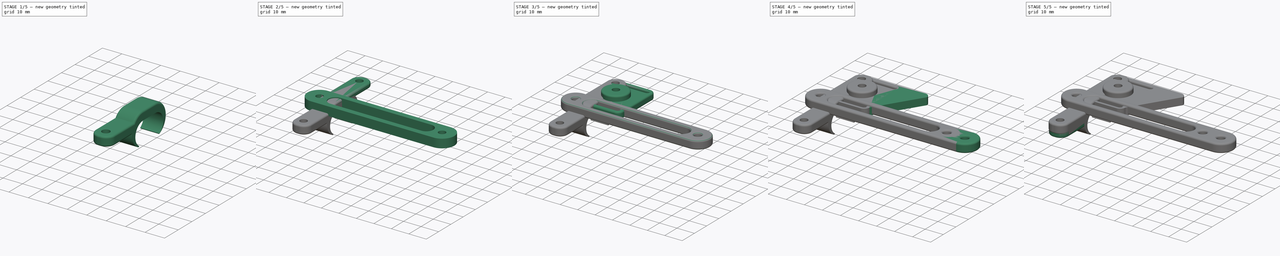
[diagram: build sequence overview — one tinted view per stage of 5, left to right]
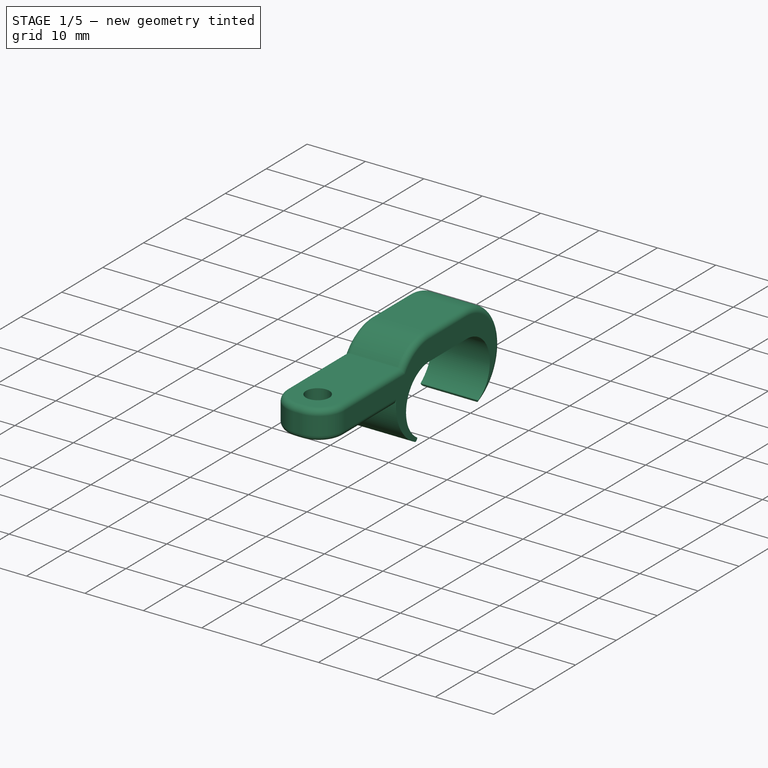
[diagram: stage 1 of 5 — iso view after this stage's code; geometry added in this stage tinted green]
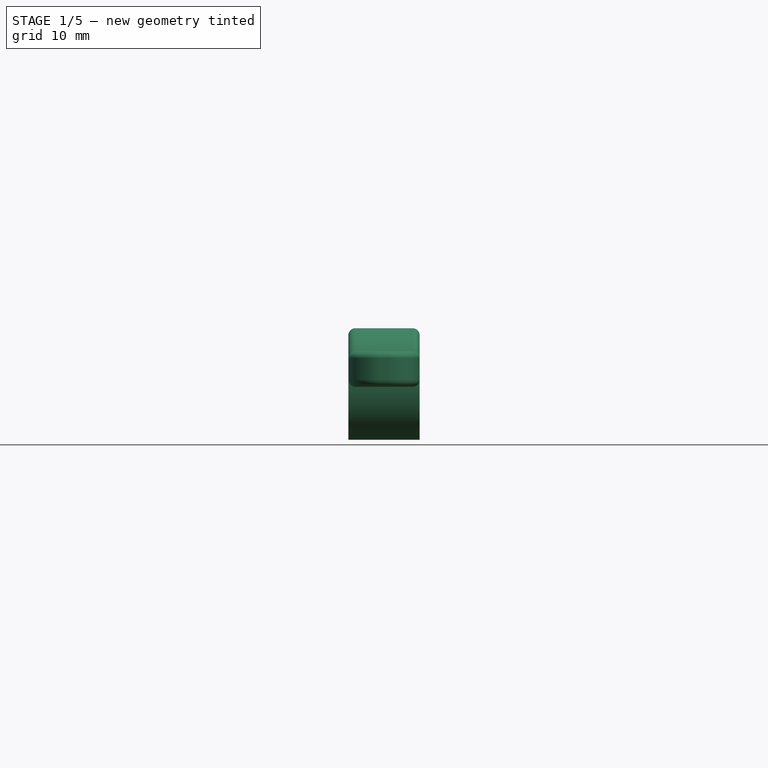
[diagram: stage 1 of 5 — front view after this stage's code; geometry added in this stage tinted green]
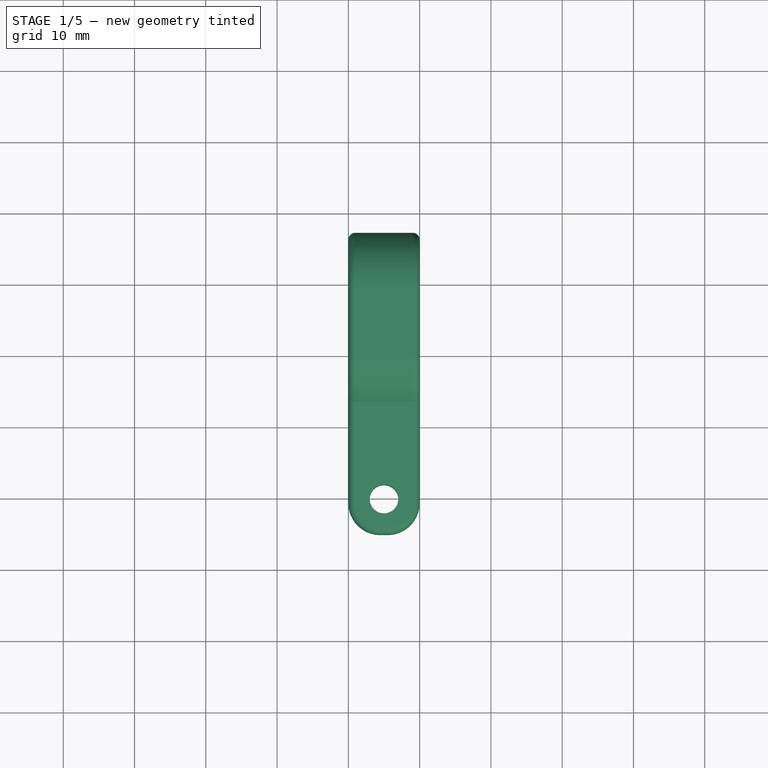
[diagram: stage 1 of 5 — top view after this stage's code; geometry added in this stage tinted green]
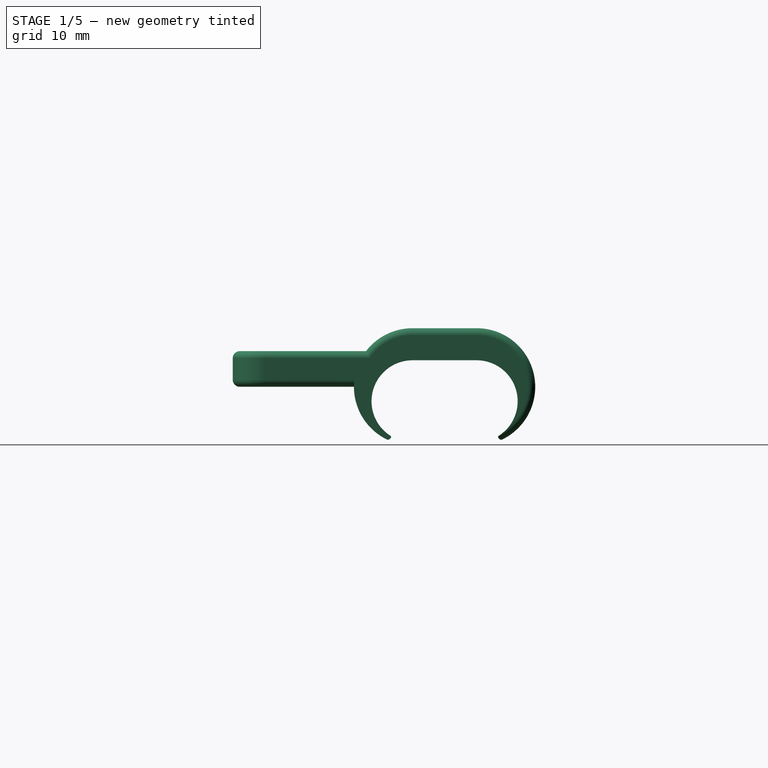
[diagram: stage 1 of 5 — right view after this stage's code; geometry added in this stage tinted green]
FCSTD DOCUMENT  (FreeCAD 0.18R4 (GitTag))
Label: v1.0_vufine_strap_mount
License: All rights reserved
LicenseURL: http://en.wikipedia.org/wiki/All_rights_reserved
objects: Sketcher::SketchObject×14, PartDesign::Pad×11, PartDesign::Fillet×11, PartDesign::Body×7, PartDesign::Pocket×3, App::DocumentObjectGroup×1
note: 60 computed .brp shape members not serialized (recipe doc carries the construction recipe); baked Part::Feature solids carry a one-line shape summary decoded from their .brp

FEATURE [PartDesign::Body] Body002  label="v1.0vufine_mount"
  Group = -> [Sketch003,Pad003,Sketch004,Pocket,Fillet003,Fillet004]
  Origin = -> Origin002
  Placement = pos=(77.5,-10.5,10.5) rot=(0,0,1;0rad)
  Tip = -> Fillet004
FEATURE [Sketcher::SketchObject] Sketch005  label="clip001"
  MapMode = 5
  Placement = pos=(0,0,0) rot=(0.57735,0.57735,0.57735;2.0944rad)
  Support = -> [YZ_Plane003]
  sketch-geometry (8):
    g0: ArcOfCircle CenterX=0 CenterY=-5.75 CenterZ=0 NormalX=0 NormalY=0 NormalZ=1 AngleXU=0 Radius=5.75 StartAngle=1.5708 EndAngle=4.1635
    g1: ArcOfCircle CenterX=9 CenterY=-5.75 CenterZ=0 NormalX=0 NormalY=0 NormalZ=1 AngleXU=0 Radius=5.75 StartAngle=5.26128 EndAngle=7.85398
    g2: LineSegment StartX=0 StartY=0 StartZ=0 EndX=9 EndY=0 EndZ=0
    g3: LineSegment StartX=0 StartY=4.5 StartZ=0 EndX=9.00002 EndY=4.5 EndZ=0
    g4: ArcOfCircle CenterX=9 CenterY=-3.71892 CenterZ=0 NormalX=0 NormalY=0 NormalZ=1 AngleXU=0 Radius=8.21892 StartAngle=5.15229 EndAngle=7.85398
    g5: ArcOfCircle CenterX=0 CenterY=-3.71892 CenterZ=0 NormalX=0 NormalY=0 NormalZ=1 AngleXU=0 Radius=8.21892 StartAngle=1.5708 EndAngle=4.27249
    g6: ArcOfCircle CenterX=-3.5 CenterY=-10.6554 CenterZ=0 NormalX=0 NormalY=0 NormalZ=1 AngleXU=0 Radius=0.5 StartAngle=4.71239 EndAngle=6.28319
    g7: ArcOfCircle CenterX=12.5 CenterY=-10.6554 CenterZ=0 NormalX=0 NormalY=0 NormalZ=1 AngleXU=0 Radius=0.5 StartAngle=3.14159 EndAngle=4.71239
  constraints (29):
    c: Coincident(g4,g7)
    c: Coincident(g1,g7)
    c: Coincident(g2,g1)
    c: Coincident(g0,g2)
    c: Coincident(g6,g0)
    c: Coincident(g6,g5)
    c: Coincident(g3,g5)
    c: Vertical(g1,g1)
    c: Vertical(g0,g0)
    c: Horizontal(g2)
    c: Diameter(g1) = 11.5
    c: Diameter(g0) = 11.5
    c: Vertical(g5,g0)
    c: Vertical(g4,g1)
    c: Horizontal(g3)
    c: Radius(g7) = 0.5
    c: Radius(g6) = 0.5
    c: Vertical(g0,g3)
    c: Horizontal(g4,g5)
    c: DistanceX(g5,g4) = 9
    c: Horizontal(g1,g0)
    c: Horizontal(g5,g4)
    c: DistanceX(g0,g0) = 3
    c: DistanceY(g0,g3) = 4.5
    c: Horizontal(g6,g0)
    c: Vertical(g5,g6)
    c: Vertical(g7,g4)
    c: Coincident(g0,g-1)
    c: Coincident(g4,g3)
FEATURE [PartDesign::Pad] Pad004
  Length = 10
  Length2 = 100
  Placement = pos=(0,0,0) rot=(0.57735,0.57735,0.57735;2.0944rad)
  Profile = -> Sketch005
  Type = 0
FEATURE [Sketcher::SketchObject] Sketch006
  ExternalGeometry = -> [Pad004]
  MapMode = 5
  Placement = pos=(0,0,0) rot=(0.57735,0.57735,-0.57735;4.18879rad)
  Support = -> [Pad004]
  sketch-geometry (4):
    g0: ArcOfCircle CenterX=-1.2e-15 CenterY=3.71892 CenterZ=0 NormalX=0 NormalY=0 NormalZ=1 AngleXU=0 Radius=8.21892 StartAngle=3.14159 EndAngle=3.79558
    g1: LineSegment StartX=-6.52308 StartY=-1.28108 StartZ=0 EndX=-25.2189 EndY=-1.28108 EndZ=0
    g2: LineSegment StartX=-8.21892 StartY=3.71892 StartZ=0 EndX=-25.2189 EndY=3.71892 EndZ=0
    g3: LineSegment StartX=-25.2189 StartY=3.71892 StartZ=0 EndX=-25.2189 EndY=-1.28108 EndZ=0
  constraints (12):
    c: PointOnObject(g0,g-3)
    c: Coincident(g0,g-3)
    c: Coincident(g2,g0)
    c: Coincident(g0,g1)
    c: Coincident(g3,g1)
    c: Coincident(g3,g2)
    c: Horizontal(g2)
    c: Horizontal(g1)
    c: Vertical(g3)
    c: DistanceX(g2,g0) = 17
    c: Horizontal(g0,g0)
    c: DistanceY(g1,g2) = 5
FEATURE [PartDesign::Pad] Pad005
  BaseFeature = -> Pad004
  Length = 10
  Length2 = 100
  Placement = pos=(0,0,0) rot=(0.57735,0.57735,0.57735;2.0944rad)
  Profile = -> Sketch006
  Reversed = true
  Type = 0
FEATURE [Sketcher::SketchObject] Sketch007
  ExternalGeometry = -> [Pad005]
  MapMode = 5
  Placement = pos=(-6e-16,3e-16,1.28108) rot=(0,0,-1;1.5708rad)
  Support = -> [Pad005]
  sketch-geometry (1):
    g0: Circle CenterX=20.2189 CenterY=5 CenterZ=0 NormalX=0 NormalY=0 NormalZ=1 AngleXU=0 Radius=2
  constraints (3):
    c: DistanceY(g-3,g0) = 5
    c: DistanceX(g0,g-3) = 5
    c: Radius(g0) = 2
FEATURE [PartDesign::Pocket] Pocket001
  BaseFeature = -> Pad005
  Length = 5
  Length2 = 100
  Placement = pos=(0,0,0) rot=(0.57735,0.57735,0.57735;2.0944rad)
  Profile = -> Sketch007
  Type = 0
FEATURE [PartDesign::Fillet] Fillet005  label="Fillet_round_rod_mount"
  Base = -> Pocket001 [Edge31,Edge35]
  BaseFeature = -> Pocket001
  Placement = pos=(0,0,0) rot=(0.57735,0.57735,0.57735;2.0944rad)
  Radius = 4.5
FEATURE [PartDesign::Fillet] Fillet006
  Base = -> Fillet005 [Edge8,Edge24,Edge44,Edge19]
  BaseFeature = -> Fillet005
  Placement = pos=(0,0,0) rot=(0.57735,0.57735,0.57735;2.0944rad)
  Radius = 1
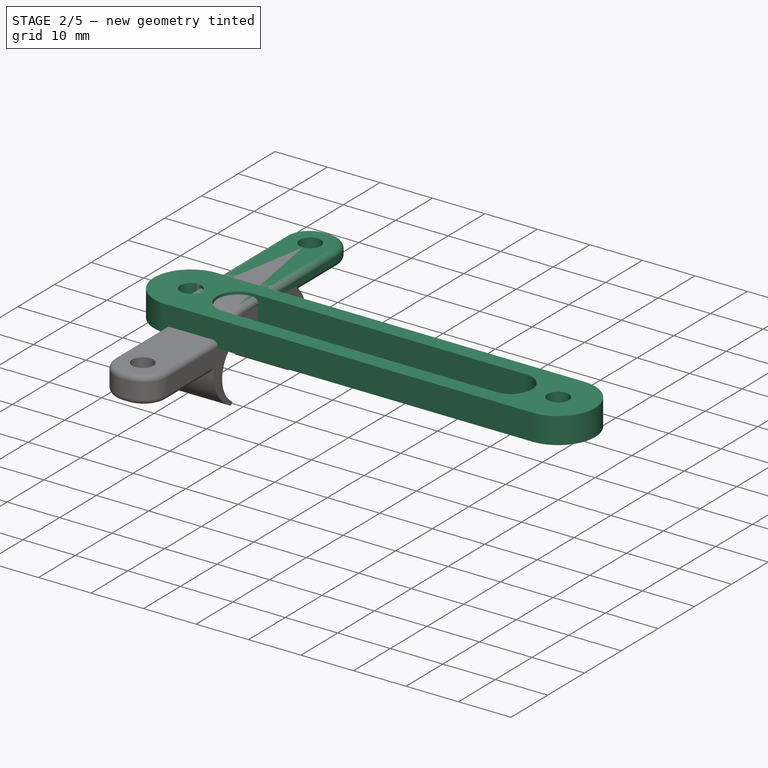
[diagram: stage 2 of 5 — iso view after this stage's code; geometry added in this stage tinted green]
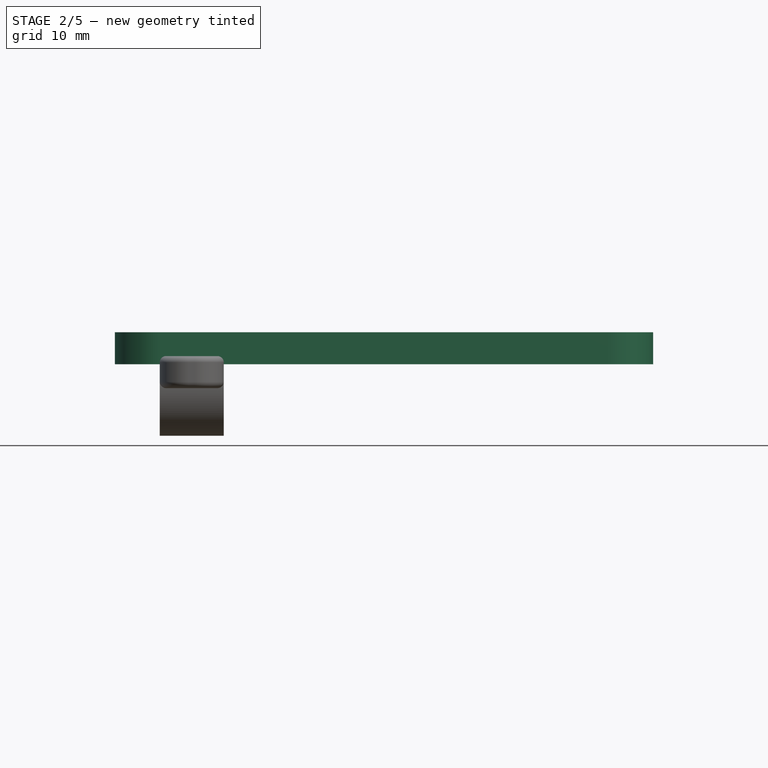
[diagram: stage 2 of 5 — front view after this stage's code; geometry added in this stage tinted green]
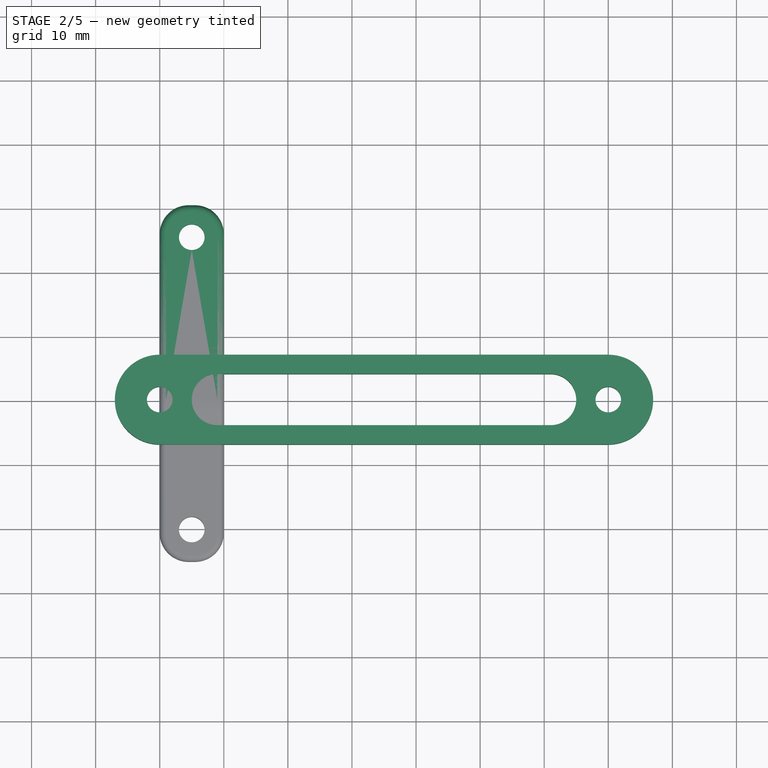
[diagram: stage 2 of 5 — top view after this stage's code; geometry added in this stage tinted green]
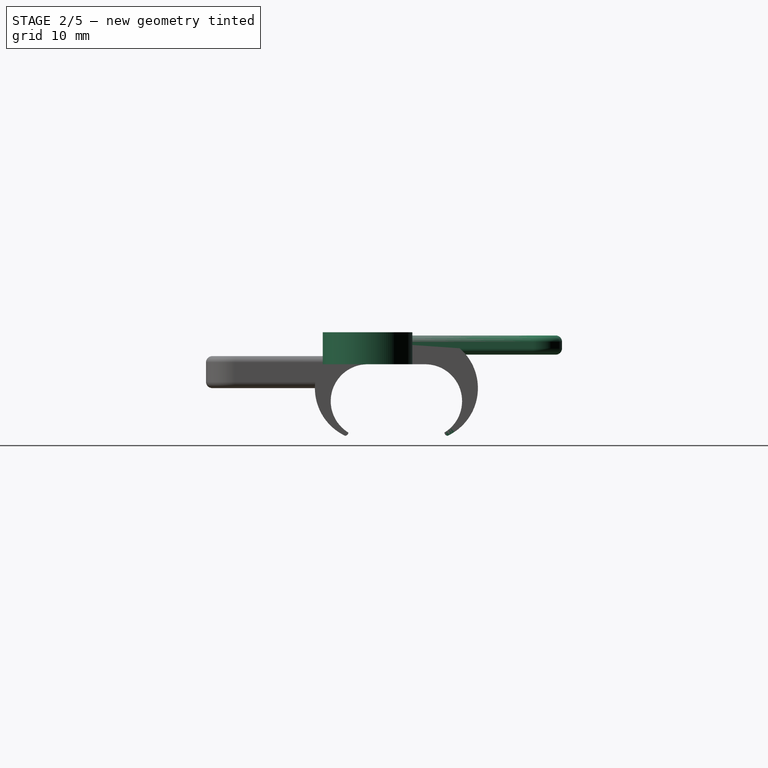
[diagram: stage 2 of 5 — right view after this stage's code; geometry added in this stage tinted green]
FEATURE [PartDesign::Body] Body  label="strap_mount"
  Group = -> [Sketch,Pad,Sketch001,Pad001,Fillet,Fillet001]
  Origin = -> Origin
  Tip = -> Fillet001
FEATURE [Sketcher::SketchObject] Sketch002  label="arm_base"
  MapMode = 5
  Support = -> [XY_Plane001]
  sketch-geometry (10):
    g0: Circle CenterX=0 CenterY=0 CenterZ=0 NormalX=0 NormalY=0 NormalZ=1 AngleXU=0 Radius=2
    g1: ArcOfCircle CenterX=0 CenterY=0 CenterZ=0 NormalX=0 NormalY=0 NormalZ=1 AngleXU=0 Radius=7 StartAngle=1.5708 EndAngle=4.71239
    g2: ArcOfCircle CenterX=70 CenterY=0 CenterZ=0 NormalX=0 NormalY=0 NormalZ=1 AngleXU=0 Radius=7 StartAngle=4.71239 EndAngle=7.85398
    g3: Circle CenterX=70 CenterY=0 CenterZ=0 NormalX=0 NormalY=0 NormalZ=1 AngleXU=0 Radius=2
    g4: LineSegment StartX=0 StartY=7 StartZ=0 EndX=70 EndY=7 EndZ=0
    g5: LineSegment StartX=70 StartY=-7 StartZ=0 EndX=0 EndY=-7 EndZ=0
    g6: ArcOfCircle CenterX=9 CenterY=0 CenterZ=0 NormalX=0 NormalY=0 NormalZ=1 AngleXU=0 Radius=4 StartAngle=1.5708 EndAngle=4.71239
    g7: ArcOfCircle CenterX=61 CenterY=-2e-16 CenterZ=0 NormalX=0 NormalY=0 NormalZ=1 AngleXU=0 Radius=4 StartAngle=4.71239 EndAngle=7.85398
    g8: LineSegment StartX=9 StartY=-4 StartZ=0 EndX=61 EndY=-4 EndZ=0
    g9: LineSegment StartX=9 StartY=4 StartZ=0 EndX=61 EndY=4 EndZ=0
  constraints (27):
    c: Coincident(g1,g0)
    c: Coincident(g0,g-1)
    c: Vertical(g1,g0)
    c: Vertical(g0,g1)
    c: Equal(g0,g3)
    c: Radius(g0) = 2
    c: Radius(g1) = 7
    c: Coincident(g2,g4)
    c: Coincident(g2,g5)
    c: Coincident(g3,g2)
    c: Vertical(g2,g2)
    c: Vertical(g2,g2)
    c: Coincident(g5,g1)
    c: Coincident(g4,g1)
    c: DistanceX(g0,g2) = 70
    c: Tangent(g6,g9) = 1.5708
    c: Tangent(g6,g8) = -1.5708
    c: Tangent(g8,g7) = -1.5708
    c: Tangent(g9,g7) = 1.5708
    c: Horizontal(g8)
    c: Equal(g6,g7)
    c: Horizontal(g6,g0)
    c: DistanceY(g1,g6) = 3
    c: DistanceX(g7,g2) = 9
    c: DistanceX(g0,g6) = 9
    c: Horizontal(g2,g0)
    c: Parallel(g5,g8)
FEATURE [PartDesign::Pad] Pad002  label="Pad_arm_base"
  Length = 5
  Length2 = 100
  Profile = -> Sketch002
  Type = 0
FEATURE [PartDesign::Body] Body001  label="arm"
  Group = -> [Sketch002,Pad002,Fillet002]
  Origin = -> Origin001
  Placement = pos=(12.5,15,7) rot=(0,0,1;0rad)
  Tip = -> Fillet002
FEATURE [Sketcher::SketchObject] Sketch003  label="clip"
  MapMode = 5
  Placement = pos=(0,0,0) rot=(0.57735,0.57735,0.57735;2.0944rad)
  Support = -> [YZ_Plane002]
  sketch-geometry (10):
    g0: ArcOfCircle CenterX=5e-16 CenterY=-5.75 CenterZ=0 NormalX=0 NormalY=0 NormalZ=1 AngleXU=0 Radius=5.75 StartAngle=1.5708 EndAngle=4.1635
    g1: ArcOfCircle CenterX=9 CenterY=-5.75 CenterZ=0 NormalX=0 NormalY=0 NormalZ=1 AngleXU=0 Radius=5.75 StartAngle=5.26128 EndAngle=7.85398
    g2: LineSegment StartX=5e-16 StartY=0 StartZ=0 EndX=9 EndY=0 EndZ=0
    g3: LineSegment StartX=5e-16 StartY=4.5 StartZ=0 EndX=30.3493 EndY=4.5 EndZ=0
    g4: ArcOfCircle CenterX=9 CenterY=-3.71892 CenterZ=0 NormalX=0 NormalY=0 NormalZ=1 AngleXU=0 Radius=8.21892 StartAngle=5.15229 EndAngle=6.97118
    g5: ArcOfCircle CenterX=5e-16 CenterY=-3.71892 CenterZ=0 NormalX=0 NormalY=0 NormalZ=1 AngleXU=0 Radius=8.21892 StartAngle=1.5708 EndAngle=4.27249
    g6: ArcOfCircle CenterX=-3.5 CenterY=-10.6554 CenterZ=0 NormalX=0 NormalY=0 NormalZ=1 AngleXU=0 Radius=0.5 StartAngle=4.71239 EndAngle=6.28319
    g7: ArcOfCircle CenterX=12.5 CenterY=-10.6554 CenterZ=0 NormalX=0 NormalY=0 NormalZ=1 AngleXU=0 Radius=0.5 StartAngle=3.14159 EndAngle=4.71239
    g8: LineSegment StartX=15.3493 StartY=1.5 StartZ=0 EndX=30.3493 EndY=1.5 EndZ=0
    g9: LineSegment StartX=30.3493 StartY=4.5 StartZ=0 EndX=30.3493 EndY=1.5 EndZ=0
  constraints (35):
    c: Coincident(g4,g7)
    c: Coincident(g1,g7)
    c: Coincident(g2,g1)
    c: Coincident(g0,g2)
    c: Coincident(g6,g0)
    c: Coincident(g6,g5)
    c: Coincident(g3,g5)
    c: Coincident(g9,g3)
    c: Coincident(g9,g8)
    c: Coincident(g8,g4)
    c: Vertical(g1,g1)
    c: Vertical(g0,g0)
    c: Horizontal(g2)
    c: Diameter(g1) = 11.5
    c: Diameter(g0) = 11.5
    c: Vertical(g5,g0)
    c: Vertical(g4,g1)
    c: Horizontal(g3)
    c: Horizontal(g8)
    c: Vertical(g9)
    c: Radius(g7) = 0.5
    c: Radius(g6) = 0.5
    c: Vertical(g0,g3)
    c: Horizontal(g4,g5)
    c: DistanceX(g5,g4) = 9
    c: Horizontal(g1,g0)
    c: Horizontal(g5,g4)
    c: DistanceY(g8,g3) = 3
    c: DistanceX(g0,g0) = 3
    c: DistanceY(g0,g3) = 4.5
    c: Horizontal(g6,g0)
    c: Vertical(g5,g6)
    c: Vertical(g7,g4)
    c: DistanceX(g4,g8) = 15
    c: Coincident(g0,g-1)
FEATURE [PartDesign::Pad] Pad003  label="clip_body"
  Length = 10
  Length2 = 100
  Placement = pos=(0,0,0) rot=(0.57735,0.57735,0.57735;2.0944rad)
  Profile = -> Sketch003
  Type = 0
FEATURE [Sketcher::SketchObject] Sketch004  label="screwhole"
  ExternalGeometry = -> [Pad003]
  MapMode = 5
  Placement = pos=(-4e-16,7e-16,1.5) rot=(0.707107,0.707107,0;3.14159rad)
  Support = -> [Pad003]
  sketch-geometry (1):
    g0: Circle CenterX=25.3493 CenterY=5 CenterZ=0 NormalX=0 NormalY=0 NormalZ=1 AngleXU=0 Radius=2
  constraints (3):
    c: DistanceX(g0,g-3) = 5
    c: DistanceY(g-3,g0) = 5
    c: Radius(g0) = 2
FEATURE [PartDesign::Pocket] Pocket  label="screwhole_added"
  BaseFeature = -> Pad003
  Length = 5
  Length2 = 100
  Placement = pos=(0,0,0) rot=(0.57735,0.57735,0.57735;2.0944rad)
  Profile = -> Sketch004
  Type = 0
FEATURE [PartDesign::Fillet] Fillet003  label="Fillet_top"
  Base = -> Pocket [Edge15,Edge22]
  BaseFeature = -> Pocket
  Placement = pos=(0,0,0) rot=(0.57735,0.57735,0.57735;2.0944rad)
  Radius = 4.5
FEATURE [PartDesign::Fillet] Fillet004  label="Fillet_clip_edges"
  Base = -> Fillet003 [Edge14,Edge23]
  BaseFeature = -> Fillet003
  Placement = pos=(0,0,0) rot=(0.57735,0.57735,0.57735;2.0944rad)
  Radius = 1
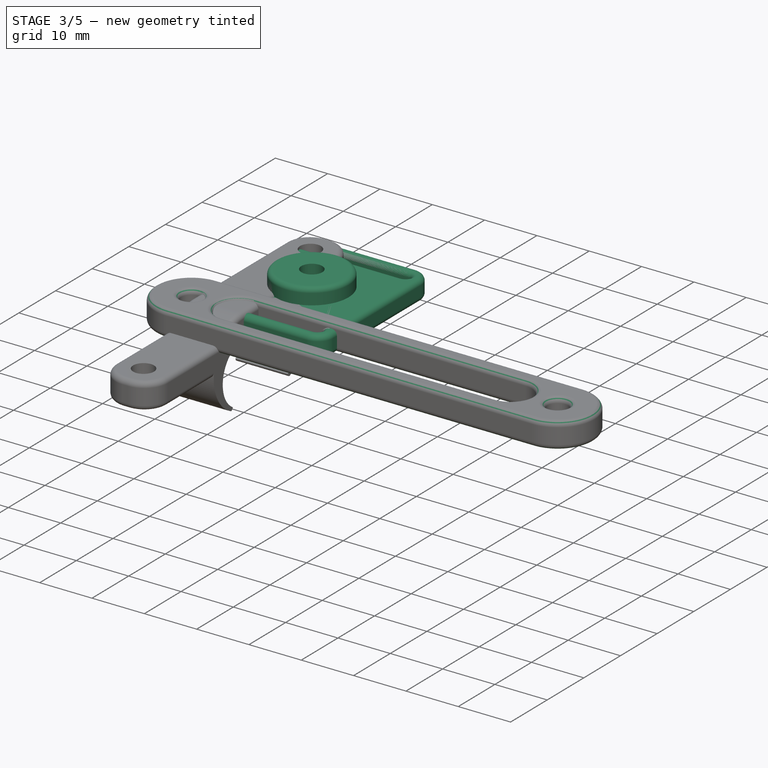
[diagram: stage 3 of 5 — iso view after this stage's code; geometry added in this stage tinted green]
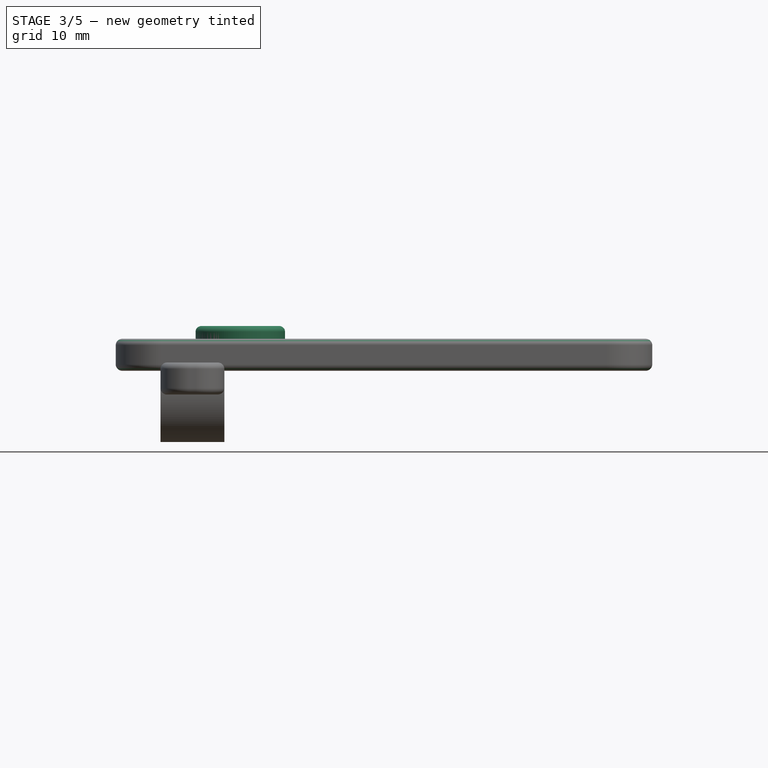
[diagram: stage 3 of 5 — front view after this stage's code; geometry added in this stage tinted green]
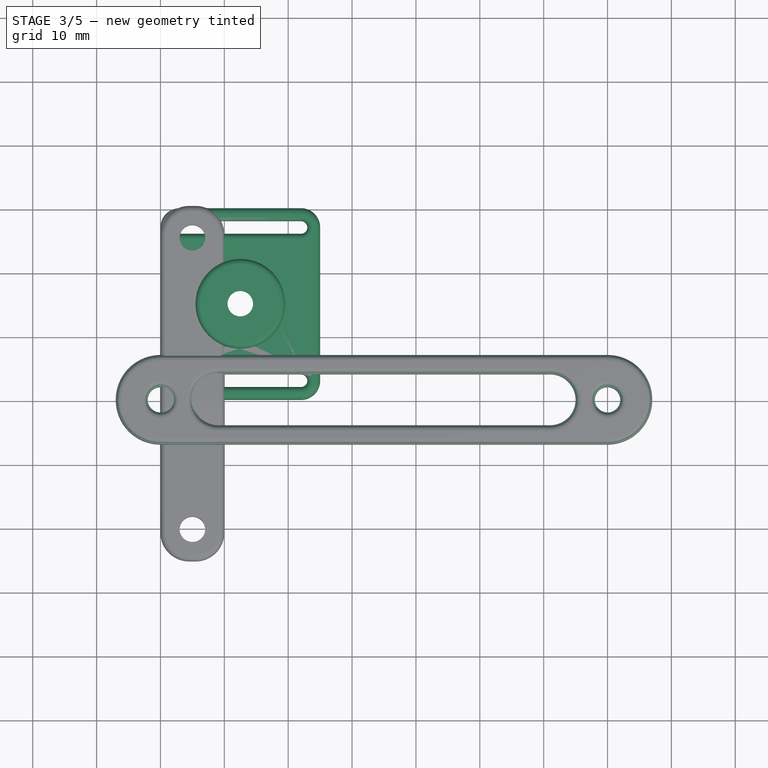
[diagram: stage 3 of 5 — top view after this stage's code; geometry added in this stage tinted green]
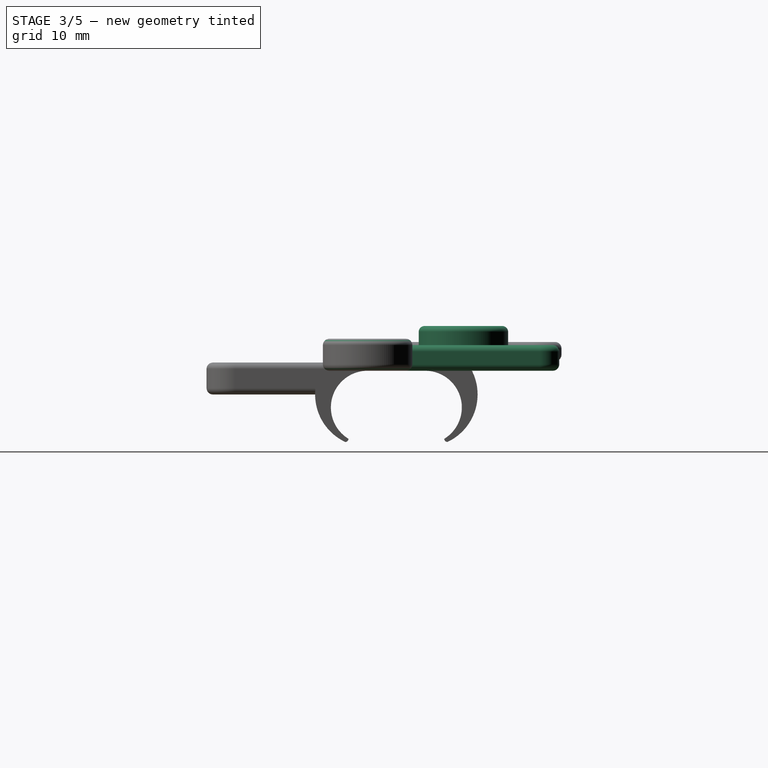
[diagram: stage 3 of 5 — right view after this stage's code; geometry added in this stage tinted green]
FEATURE [Sketcher::SketchObject] Sketch  label="strap_attachment"
  MapMode = 5
  Support = -> [XY_Plane]
  sketch-geometry (17):
    g0: LineSegment StartX=-4e-16 StartY=3 StartZ=0 EndX=-4e-16 EndY=27 EndZ=0
    g1: ArcOfCircle CenterX=3 CenterY=27 CenterZ=0 NormalX=0 NormalY=0 NormalZ=1 AngleXU=0 Radius=3 StartAngle=1.5708 EndAngle=3.14159
    g2: ArcOfCircle CenterX=22 CenterY=27 CenterZ=0 NormalX=0 NormalY=0 NormalZ=1 AngleXU=0 Radius=3 StartAngle=0 EndAngle=1.5708
    g3: ArcOfCircle CenterX=22 CenterY=3 CenterZ=0 NormalX=0 NormalY=0 NormalZ=1 AngleXU=0 Radius=3 StartAngle=4.71239 EndAngle=6.28319
    g4: ArcOfCircle CenterX=3 CenterY=3 CenterZ=0 NormalX=0 NormalY=0 NormalZ=1 AngleXU=0 Radius=3 StartAngle=3.14159 EndAngle=4.71239
    g5: LineSegment StartX=3 StartY=30 StartZ=0 EndX=22 EndY=30 EndZ=0
    g6: LineSegment StartX=25 StartY=27 StartZ=0 EndX=25 EndY=3 EndZ=0
    g7: LineSegment StartX=22 StartY=0 StartZ=0 EndX=3 EndY=0 EndZ=0
    g8: ArcOfCircle CenterX=3 CenterY=3 CenterZ=0 NormalX=0 NormalY=0 NormalZ=1 AngleXU=0 Radius=1 StartAngle=1.5708 EndAngle=4.71239
    g9: ArcOfCircle CenterX=22 CenterY=3 CenterZ=0 NormalX=0 NormalY=0 NormalZ=1 AngleXU=0 Radius=1 StartAngle=4.71239 EndAngle=7.85398
    g10: LineSegment StartX=3 StartY=2 StartZ=0 EndX=22 EndY=2 EndZ=0
    g11: LineSegment StartX=3 StartY=4 StartZ=0 EndX=22 EndY=4 EndZ=0
    g12: ArcOfCircle CenterX=3 CenterY=27 CenterZ=0 NormalX=0 NormalY=0 NormalZ=1 AngleXU=0 Radius=1 StartAngle=1.5708 EndAngle=4.71239
    g13: ArcOfCircle CenterX=22 CenterY=27 CenterZ=0 NormalX=0 NormalY=0 NormalZ=1 AngleXU=0 Radius=1 StartAngle=4.71239 EndAngle=7.85398
    g14: LineSegment StartX=3 StartY=26 StartZ=0 EndX=22 EndY=26 EndZ=0
    g15: LineSegment StartX=3 StartY=28 StartZ=0 EndX=22 EndY=28 EndZ=0
    g16: Circle CenterX=12.5 CenterY=15 CenterZ=0 NormalX=0 NormalY=0 NormalZ=1 AngleXU=0 Radius=4.5
  constraints (55):
    c: Coincident(g4,g7)
    c: Coincident(g0,g4)
    c: Coincident(g0,g1)
    c: Coincident(g5,g1)
    c: Coincident(g5,g2)
    c: Coincident(g2,g6)
    c: Coincident(g6,g3)
    c: Coincident(g3,g7)
    c: Coincident(g3,g9)
    c: Coincident(g8,g4)
    c: Coincident(g1,g12)
    c: Coincident(g2,g13)
    c: Coincident(g11,g9)
    c: Coincident(g9,g10)
    c: Coincident(g10,g8)
    c: Coincident(g8,g11)
    c: Coincident(g13,g15)
    c: Coincident(g13,g14)
    c: Coincident(g14,g12)
    c: Coincident(g12,g15)
    c: Vertical(g3,g9)
    c: Vertical(g9,g3)
    c: Vertical(g3,g9)
    c: Vertical(g9,g13)
    c: Vertical(g13,g2)
    c: Vertical(g2,g13)
    c: Vertical(g13,g2)
    c: Vertical(g4,g8)
    c: Vertical(g8,g4)
    c: Vertical(g4,g8)
    c: Vertical(g8,g12)
    c: Vertical(g12,g1)
    c: Vertical(g12,g1)
    c: Horizontal(g0,g4)
    c: Horizontal(g4,g3)
    c: Horizontal(g3,g3)
    c: Horizontal(g0,g1)
    c: Horizontal(g1,g2)
    c: Horizontal(g2,g2)
    c: Horizontal(g15)
    c: Horizontal(g5)
    c: Horizontal(g11)
    c: Horizontal(g7)
    c: Vertical(g0)
    c: Horizontal(g4,g-1)
    c: Vertical(g-1,g0)
    c: Equal(g9,g13)
    c: Equal(g11,g15)
    c: Radius(g13) = 1
    c: Distance(g15) = 19
    c: Distance(g3,g2) = 30
    c: Distance(g1,g1) = 3
    c: DistanceY(g4,g16) = 15
    c: DistanceX(g0,g16) = 12.5
    c: Radius(g16) = 4.5
FEATURE [PartDesign::Pad] Pad
  Length = 4
  Length2 = 100
  Profile = -> Sketch
  Type = 0
FEATURE [Sketcher::SketchObject] Sketch001  label="screw_cover_and_pivot"
  ExternalGeometry = -> [Pad]
  MapMode = 5
  Placement = pos=(0,0,4) rot=(0,0,1;0rad)
  Support = -> [Pad]
  sketch-geometry (2):
    g0: Circle CenterX=12.5 CenterY=15 CenterZ=0 NormalX=0 NormalY=0 NormalZ=1 AngleXU=0 Radius=7
    g1: Circle CenterX=12.5 CenterY=15 CenterZ=0 NormalX=0 NormalY=0 NormalZ=1 AngleXU=0 Radius=2
  constraints (4):
    c: Radius(g1) = 2
    c: Radius(g0) = 7
    c: Coincident(g1,g0)
    c: Coincident(g0,g-3)
FEATURE [PartDesign::Pad] Pad001
  BaseFeature = -> Pad
  Length = 3
  Length2 = 100
  Profile = -> Sketch001
  Type = 0
FEATURE [PartDesign::Fillet] Fillet  label="Fillet_strapholes"
  Base = -> Pad001 [Edge19,Edge33,Edge38,Edge22,Edge54,Edge55]
  BaseFeature = -> Pad001
  Radius = 0.9
FEATURE [PartDesign::Fillet] Fillet001  label="Fillet_everything_else"
  Base = -> Fillet [Edge40,Edge7,Edge13]
  BaseFeature = -> Fillet
  Radius = 1
FEATURE [PartDesign::Fillet] Fillet002  label="Fillet_arm_base_edges"
  Base = -> Pad002 [Edge16,Edge10,Edge30,Edge27,Edge11,Edge21]
  BaseFeature = -> Pad002
  Radius = 1
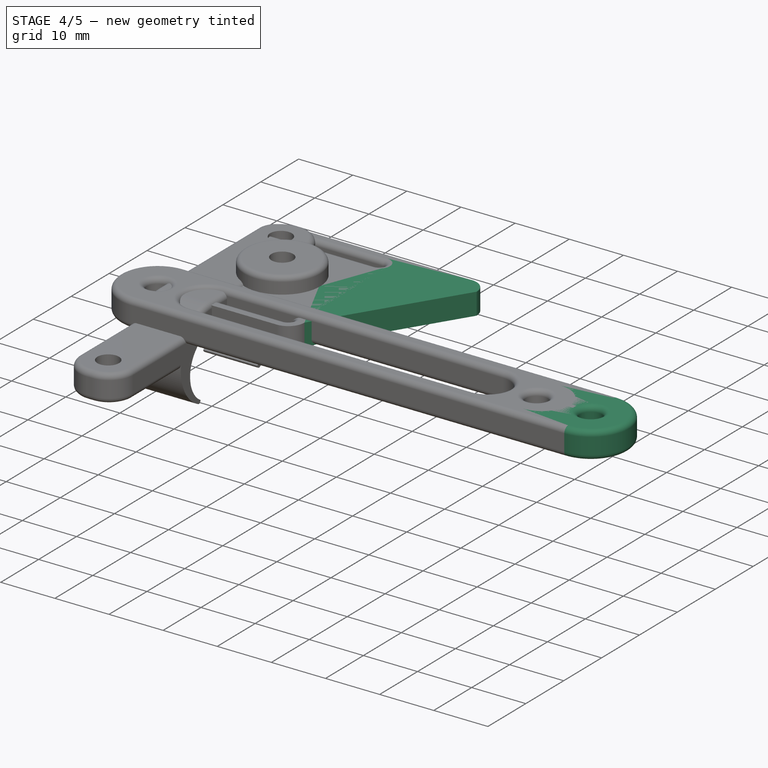
[diagram: stage 4 of 5 — iso view after this stage's code; geometry added in this stage tinted green]
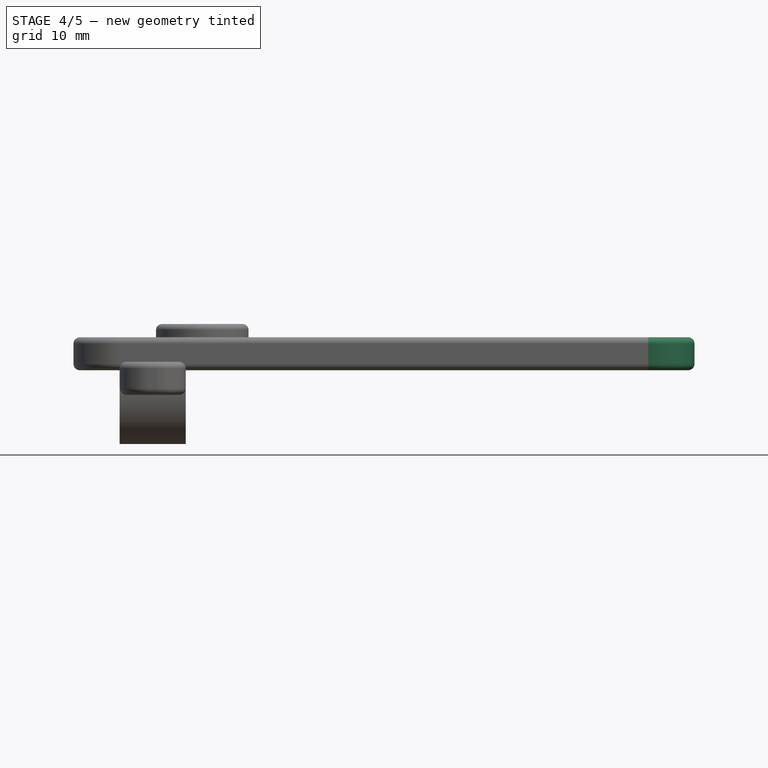
[diagram: stage 4 of 5 — front view after this stage's code; geometry added in this stage tinted green]
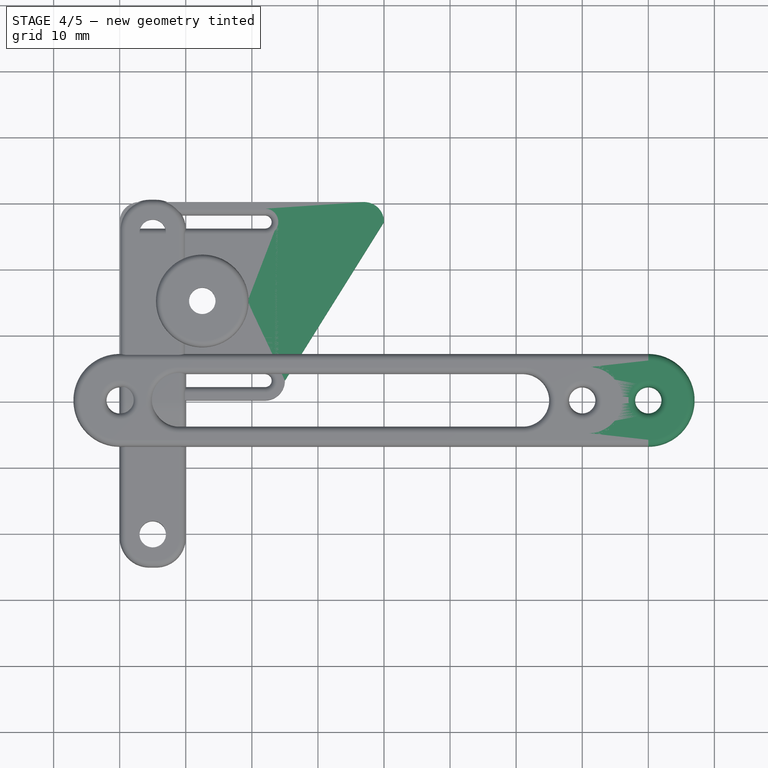
[diagram: stage 4 of 5 — top view after this stage's code; geometry added in this stage tinted green]
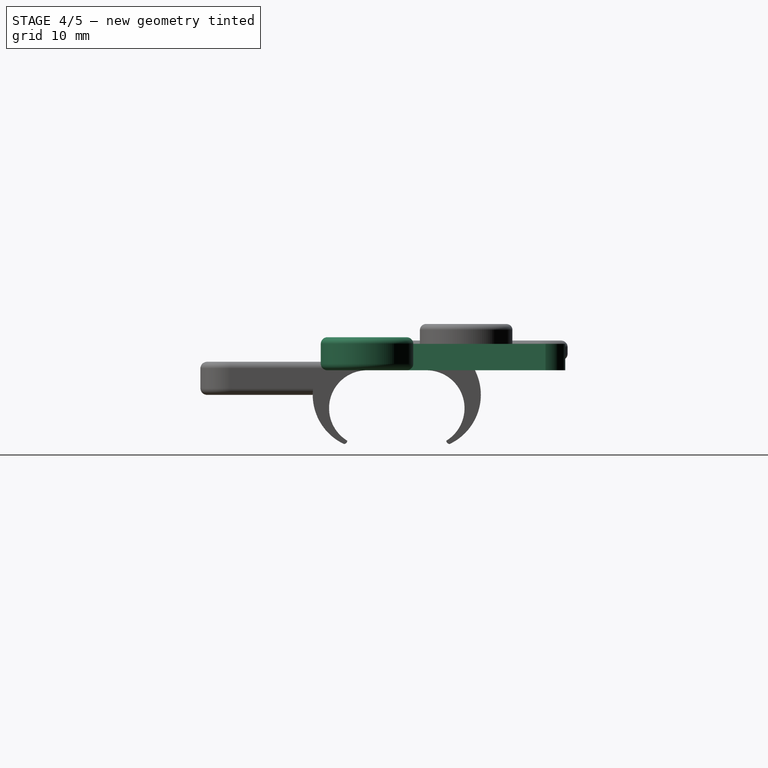
[diagram: stage 4 of 5 — right view after this stage's code; geometry added in this stage tinted green]
FEATURE [PartDesign::Body] Body004  label="v1.2vufine_mount"
  Group = -> [Sketch008,Pad006,Sketch010,Pad007,Sketch009,Pocket002,Fillet007,Fillet008]
  Origin = -> Origin004
  Placement = pos=(124.584,7.75,28.5) rot=(0,0,1;3.66519rad)
  Tip = -> Fillet008
FEATURE [Sketcher::SketchObject] Sketch011  label="strap_attachment001"
  MapMode = 5
  Support = -> [XY_Plane005]
  sketch-geometry (17):
    g0: LineSegment StartX=0 StartY=3 StartZ=0 EndX=0 EndY=27 EndZ=0
    g1: ArcOfCircle CenterX=3 CenterY=27 CenterZ=0 NormalX=0 NormalY=0 NormalZ=1 AngleXU=0 Radius=3 StartAngle=1.5708 EndAngle=3.14159
    g2: ArcOfCircle CenterX=22 CenterY=3 CenterZ=0 NormalX=0 NormalY=0 NormalZ=1 AngleXU=0 Radius=3 StartAngle=4.71239 EndAngle=6.28319
    g3: ArcOfCircle CenterX=3 CenterY=3 CenterZ=0 NormalX=0 NormalY=0 NormalZ=1 AngleXU=0 Radius=3 StartAngle=3.14159 EndAngle=4.71239
    g4: LineSegment StartX=3 StartY=30 StartZ=0 EndX=37 EndY=30 EndZ=0
    g5: LineSegment StartX=40 StartY=27 StartZ=0 EndX=25 EndY=3 EndZ=0
    g6: LineSegment StartX=22 StartY=0 StartZ=0 EndX=3 EndY=0 EndZ=0
    g7: ArcOfCircle CenterX=3 CenterY=3 CenterZ=0 NormalX=0 NormalY=0 NormalZ=1 AngleXU=0 Radius=1 StartAngle=1.5708 EndAngle=4.71239
    g8: ArcOfCircle CenterX=22 CenterY=3 CenterZ=0 NormalX=0 NormalY=0 NormalZ=1 AngleXU=0 Radius=1 StartAngle=4.71239 EndAngle=7.85398
    g9: LineSegment StartX=3 StartY=2 StartZ=0 EndX=22 EndY=2 EndZ=0
    g10: LineSegment StartX=3 StartY=4 StartZ=0 EndX=22 EndY=4 EndZ=0
    g11: ArcOfCircle CenterX=3 CenterY=27 CenterZ=0 NormalX=0 NormalY=0 NormalZ=1 AngleXU=0 Radius=1 StartAngle=1.5708 EndAngle=4.71239
    g12: ArcOfCircle CenterX=22 CenterY=27 CenterZ=0 NormalX=0 NormalY=0 NormalZ=1 AngleXU=0 Radius=1 StartAngle=4.71239 EndAngle=7.85398
    g13: LineSegment StartX=3 StartY=26 StartZ=0 EndX=22 EndY=26 EndZ=0
    g14: LineSegment StartX=3 StartY=28 StartZ=0 EndX=22 EndY=28 EndZ=0
    g15: Circle CenterX=12.5 CenterY=15 CenterZ=0 NormalX=0 NormalY=0 NormalZ=1 AngleXU=0 Radius=4.5
    g16: ArcOfCircle CenterX=37 CenterY=27 CenterZ=0 NormalX=0 NormalY=0 NormalZ=1 AngleXU=0 Radius=3 StartAngle=0 EndAngle=1.5708
  constraints (56):
    c: Coincident(g3,g6)
    c: Coincident(g0,g3)
    c: Coincident(g0,g1)
    c: Coincident(g4,g1)
    c: Coincident(g5,g2)
    c: Coincident(g2,g6)
    c: Coincident(g2,g8)
    c: Coincident(g7,g3)
    c: Coincident(g1,g11)
    c: Coincident(g10,g8)
    c: Coincident(g8,g9)
    c: Coincident(g9,g7)
    c: Coincident(g7,g10)
    c: Coincident(g12,g14)
    c: Coincident(g12,g13)
    c: Coincident(g13,g11)
    c: Coincident(g11,g14)
    c: Vertical(g2,g8)
    c: Vertical(g8,g2)
    c: Vertical(g2,g8)
    c: Vertical(g8,g12)
    c: Vertical(g3,g7)
    c: Vertical(g7,g3)
    c: Vertical(g3,g7)
    c: Vertical(g7,g11)
    c: Vertical(g11,g1)
    c: Vertical(g11,g1)
    c: Horizontal(g0,g3)
    c: Horizontal(g3,g2)
    c: Horizontal(g2,g2)
    c: Horizontal(g0,g1)
    c: Horizontal(g14)
    c: Horizontal(g4)
    c: Horizontal(g10)
    c: Horizontal(g6)
    c: Vertical(g0)
    c: Horizontal(g3,g-1)
    c: Vertical(g-1,g0)
    c: Equal(g8,g12)
    c: Equal(g10,g14)
    c: Radius(g12) = 1
    c: Distance(g14) = 19
    c: Distance(g1,g1) = 3
    c: DistanceY(g3,g15) = 15
    c: DistanceX(g0,g15) = 12.5
    c: Radius(g15) = 4.5
    c: DistanceY(g3,g1) = 30
    c: Horizontal(g13)
    c: Coincident(g5,g16)
    c: Coincident(g16,g4)
    c: Horizontal(g16,g5)
    c: Vertical(g16,g4)
    c: Vertical(g1,g11)
    c: Horizontal(g16,g12)
    c: Vertical(g12,g12)
    c: DistanceX(g12,g16) = 15
FEATURE [PartDesign::Pad] Pad009
  Length = 4
  Length2 = 100
  Profile = -> Sketch011
  Type = 0
FEATURE [Sketcher::SketchObject] Sketch012  label="screw_cover_and_pivot001"
  ExternalGeometry = -> [Pad009]
  MapMode = 5
  Placement = pos=(0,0,4) rot=(0,0,1;0rad)
  Support = -> [Pad009]
  sketch-geometry (2):
    g0: Circle CenterX=12.5 CenterY=15 CenterZ=0 NormalX=0 NormalY=0 NormalZ=1 AngleXU=0 Radius=7
    g1: Circle CenterX=12.5 CenterY=15 CenterZ=0 NormalX=0 NormalY=0 NormalZ=1 AngleXU=0 Radius=2
  constraints (4):
    c: Radius(g1) = 2
    c: Radius(g0) = 7
    c: Coincident(g1,g0)
    c: Coincident(g0,g-3)
FEATURE [PartDesign::Pad] Pad008
  BaseFeature = -> Pad009
  Length = 3
  Length2 = 100
  Profile = -> Sketch012
  Type = 0
FEATURE [PartDesign::Fillet] Fillet009
  Base = -> Pad008 [Edge21,Edge24,Edge17,Edge54,Edge37,Edge32]
  BaseFeature = -> Pad008
  Radius = 1
FEATURE [PartDesign::Body] Body005  label="v1.1strap_mount"
  Group = -> [Sketch011,Pad009,Sketch012,Pad008,Fillet009]
  Origin = -> Origin005
  Tip = -> Fillet009
FEATURE [Sketcher::SketchObject] Sketch013  label="arm_base001"
  MapMode = 5
  Support = -> [XY_Plane006]
  sketch-geometry (10):
    g0: Circle CenterX=0 CenterY=0 CenterZ=0 NormalX=0 NormalY=0 NormalZ=1 AngleXU=0 Radius=2
    g1: ArcOfCircle CenterX=0 CenterY=0 CenterZ=0 NormalX=0 NormalY=0 NormalZ=1 AngleXU=0 Radius=7 StartAngle=1.5708 EndAngle=4.71239
    g2: ArcOfCircle CenterX=80 CenterY=0 CenterZ=0 NormalX=0 NormalY=0 NormalZ=1 AngleXU=0 Radius=7 StartAngle=4.71239 EndAngle=7.85398
    g3: Circle CenterX=80 CenterY=0 CenterZ=0 NormalX=0 NormalY=0 NormalZ=1 AngleXU=0 Radius=2
    g4: LineSegment StartX=0 StartY=7 StartZ=0 EndX=80 EndY=7 EndZ=0
    g5: LineSegment StartX=80 StartY=-7 StartZ=0 EndX=0 EndY=-7 EndZ=0
    g6: ArcOfCircle CenterX=9 CenterY=0 CenterZ=0 NormalX=0 NormalY=0 NormalZ=1 AngleXU=0 Radius=4 StartAngle=1.5708 EndAngle=4.71239
    g7: ArcOfCircle CenterX=71 CenterY=5.1386e-12 CenterZ=0 NormalX=0 NormalY=0 NormalZ=1 AngleXU=0 Radius=4 StartAngle=4.71239 EndAngle=7.85398
    g8: LineSegment StartX=9 StartY=-4 StartZ=0 EndX=71 EndY=-4 EndZ=0
    g9: LineSegment StartX=9 StartY=4 StartZ=0 EndX=71 EndY=4 EndZ=0
  constraints (27):
    c: Coincident(g1,g0)
    c: Coincident(g0,g-1)
    c: Vertical(g1,g0)
    c: Vertical(g0,g1)
    c: Equal(g0,g3)
    c: Radius(g0) = 2
    c: Radius(g1) = 7
    c: Coincident(g2,g4)
    c: Coincident(g2,g5)
    c: Coincident(g3,g2)
    c: Vertical(g2,g2)
    c: Vertical(g2,g2)
    c: Coincident(g5,g1)
    c: Coincident(g4,g1)
    c: DistanceX(g0,g2) = 80
    c: Tangent(g6,g9) = 1.5708
    c: Tangent(g6,g8) = -1.5708
    c: Tangent(g8,g7) = -1.5708
    c: Tangent(g9,g7) = 1.5708
    c: Horizontal(g8)
    c: Equal(g6,g7)
    c: Horizontal(g6,g0)
    c: DistanceY(g1,g6) = 3
    c: DistanceX(g7,g2) = 9
    c: DistanceX(g0,g6) = 9
    c: Horizontal(g2,g0)
    c: Parallel(g5,g8)
FEATURE [PartDesign::Pad] Pad010  label="Pad_arm_base001"
  Length = 5
  Length2 = 100
  Profile = -> Sketch013
  Type = 0
FEATURE [PartDesign::Fillet] Fillet010  label="Fillet_arm_base_edges001"
  Base = -> Pad010 [Edge16,Edge10,Edge30,Edge27,Edge11,Edge21]
  BaseFeature = -> Pad010
  Radius = 1
FEATURE [PartDesign::Body] Body006  label="v1.1arm80mm"
  Group = -> [Sketch013,Pad010,Fillet010]
  Origin = -> Origin006
  Placement = pos=(12.5,15,7) rot=(0,0,1;0rad)
  Tip = -> Fillet010
FEATURE [App::DocumentObjectGroup] Group  label="old"
  Group = -> [Body,Body001,Body002,Body003]
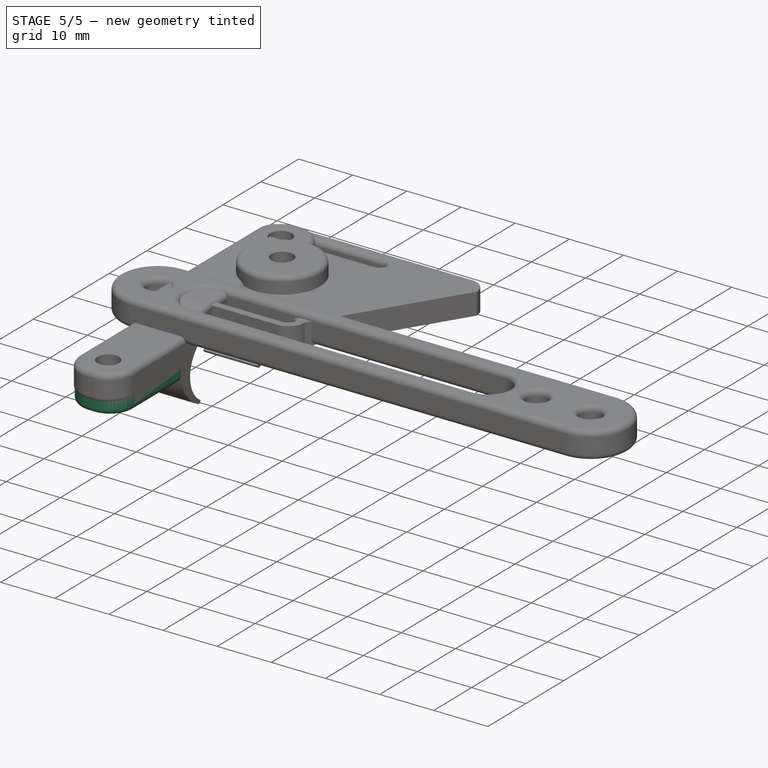
[diagram: stage 5 of 5 — iso view after this stage's code; geometry added in this stage tinted green]
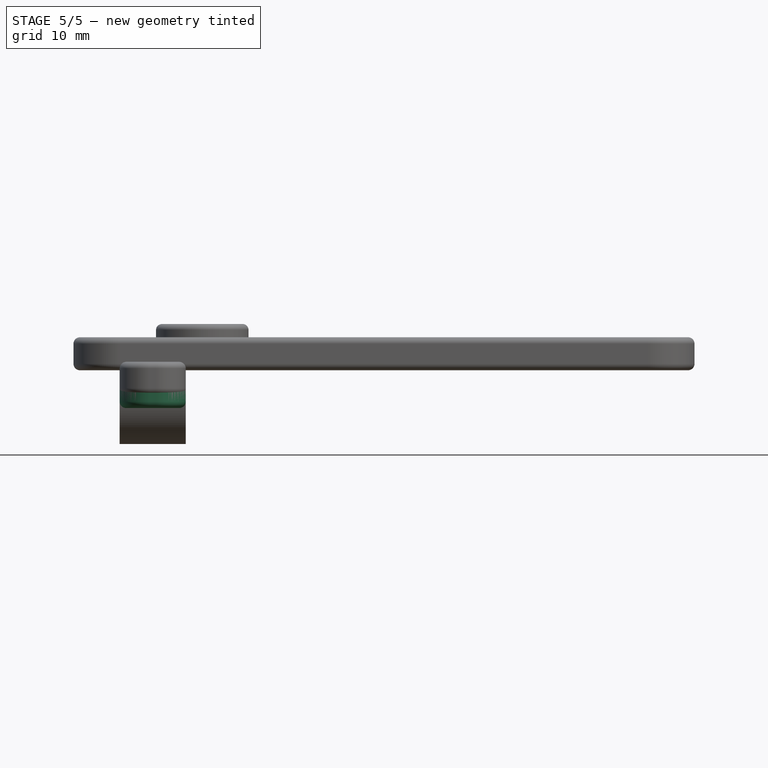
[diagram: stage 5 of 5 — front view after this stage's code; geometry added in this stage tinted green]
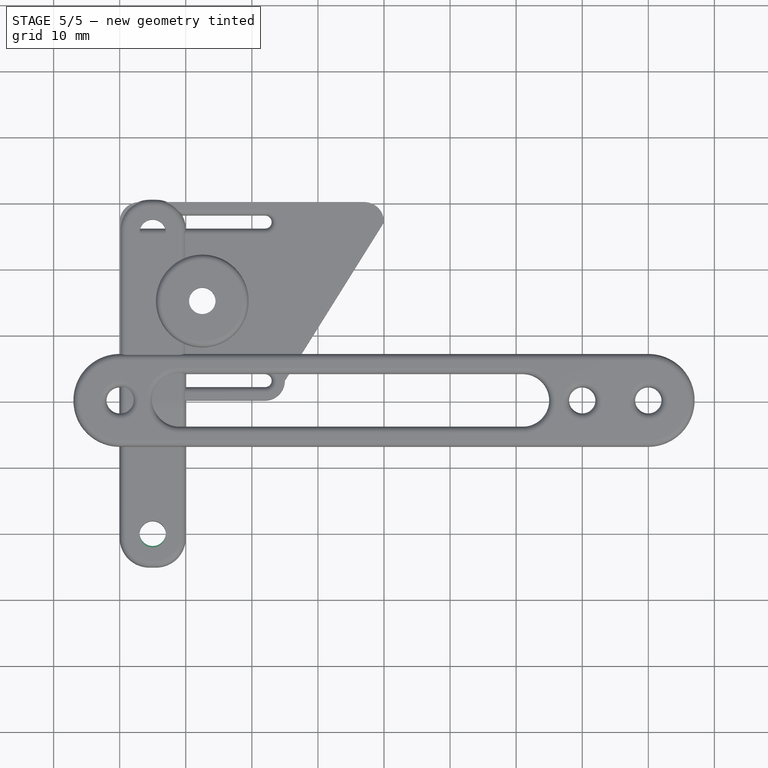
[diagram: stage 5 of 5 — top view after this stage's code; geometry added in this stage tinted green]
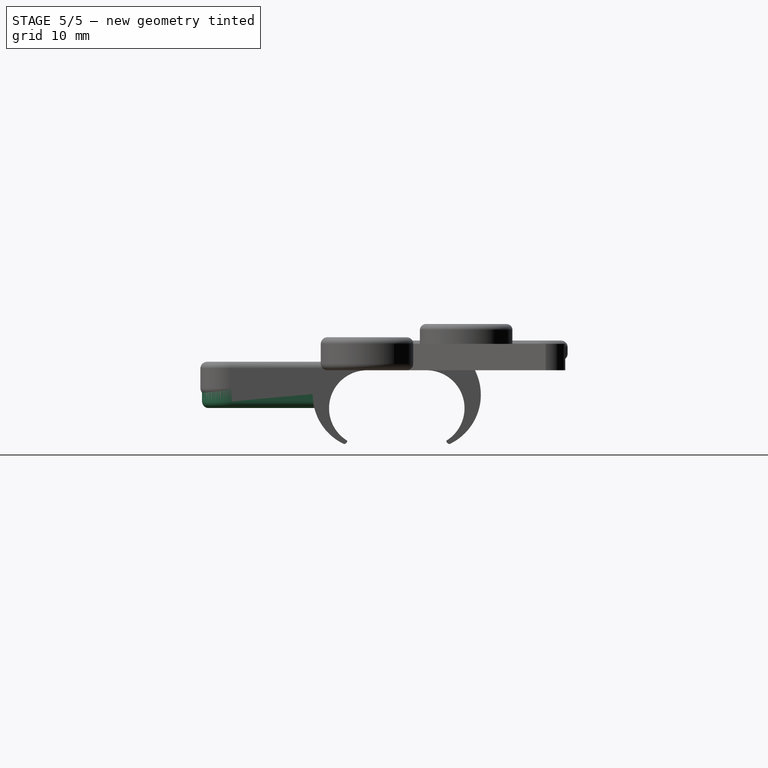
[diagram: stage 5 of 5 — right view after this stage's code; geometry added in this stage tinted green]
FEATURE [PartDesign::Body] Body003  label="v1.1vufine_mount"
  Group = -> [Sketch005,Pad004,Sketch006,Pad005,Sketch007,Pocket001,Fillet005,Fillet006]
  Origin = -> Origin003
  Placement = pos=(124.584,7.75,28.5) rot=(0,0,1;3.66519rad)
  Tip = -> Fillet006
FEATURE [Sketcher::SketchObject] Sketch008  label="clip002"
  MapMode = 5
  Placement = pos=(0,0,0) rot=(0.57735,0.57735,0.57735;2.0944rad)
  Support = -> [YZ_Plane004]
  sketch-geometry (8):
    g0: ArcOfCircle CenterX=0 CenterY=-5.75 CenterZ=0 NormalX=0 NormalY=0 NormalZ=1 AngleXU=0 Radius=5.75 StartAngle=1.5708 EndAngle=4.1635
    g1: ArcOfCircle CenterX=9 CenterY=-5.75 CenterZ=0 NormalX=0 NormalY=0 NormalZ=1 AngleXU=0 Radius=5.75 StartAngle=5.26128 EndAngle=7.85398
    g2: LineSegment StartX=0 StartY=0 StartZ=0 EndX=9 EndY=0 EndZ=0
    g3: LineSegment StartX=0 StartY=4.5 StartZ=0 EndX=9.00002 EndY=4.5 EndZ=0
    g4: ArcOfCircle CenterX=9 CenterY=-3.71892 CenterZ=0 NormalX=0 NormalY=0 NormalZ=1 AngleXU=0 Radius=8.21892 StartAngle=5.15229 EndAngle=7.85398
    g5: ArcOfCircle CenterX=0 CenterY=-3.71892 CenterZ=0 NormalX=0 NormalY=0 NormalZ=1 AngleXU=0 Radius=8.21892 StartAngle=1.5708 EndAngle=4.27249
    g6: ArcOfCircle CenterX=-3.5 CenterY=-10.6554 CenterZ=0 NormalX=0 NormalY=0 NormalZ=1 AngleXU=0 Radius=0.5 StartAngle=4.71239 EndAngle=6.28319
    g7: ArcOfCircle CenterX=12.5 CenterY=-10.6554 CenterZ=0 NormalX=0 NormalY=0 NormalZ=1 AngleXU=0 Radius=0.5 StartAngle=3.14159 EndAngle=4.71239
  constraints (29):
    c: Coincident(g4,g7)
    c: Coincident(g1,g7)
    c: Coincident(g2,g1)
    c: Coincident(g0,g2)
    c: Coincident(g6,g0)
    c: Coincident(g6,g5)
    c: Coincident(g3,g5)
    c: Vertical(g1,g1)
    c: Vertical(g0,g0)
    c: Horizontal(g2)
    c: Diameter(g1) = 11.5
    c: Diameter(g0) = 11.5
    c: Vertical(g5,g0)
    c: Vertical(g4,g1)
    c: Horizontal(g3)
    c: Radius(g7) = 0.5
    c: Radius(g6) = 0.5
    c: Vertical(g0,g3)
    c: Horizontal(g4,g5)
    c: DistanceX(g5,g4) = 9
    c: Horizontal(g1,g0)
    c: Horizontal(g5,g4)
    c: DistanceX(g0,g0) = 3
    c: DistanceY(g0,g3) = 4.5
    c: Horizontal(g6,g0)
    c: Vertical(g5,g6)
    c: Vertical(g7,g4)
    c: Coincident(g0,g-1)
    c: Coincident(g4,g3)
FEATURE [PartDesign::Pad] Pad006
  Length = 10
  Length2 = 100
  Placement = pos=(0,0,0) rot=(0.57735,0.57735,0.57735;2.0944rad)
  Profile = -> Sketch008
  Type = 0
FEATURE [Sketcher::SketchObject] Sketch010
  ExternalGeometry = -> [Pad006]
  MapMode = 5
  Placement = pos=(0,0,0) rot=(0.57735,0.57735,-0.57735;4.18879rad)
  Support = -> [Pad006]
  sketch-geometry (4):
    g0: ArcOfCircle CenterX=0 CenterY=3.71892 CenterZ=0 NormalX=0 NormalY=0 NormalZ=1 AngleXU=0 Radius=8.21892 StartAngle=2.89578 EndAngle=3.51524
    g1: LineSegment StartX=-7.65184 StartY=0.718917 StartZ=0 EndX=-24.9719 EndY=0.718917 EndZ=0
    g2: LineSegment StartX=-7.97186 StartY=5.71892 StartZ=0 EndX=-24.9719 EndY=5.71892 EndZ=0
    g3: LineSegment StartX=-24.9719 StartY=5.71892 StartZ=0 EndX=-24.9719 EndY=0.718917 EndZ=0
  constraints (12):
    c: PointOnObject(g0,g-3)
    c: Coincident(g0,g-3)
    c: Coincident(g2,g0)
    c: Coincident(g0,g1)
    c: Coincident(g3,g1)
    c: Coincident(g3,g2)
    c: Horizontal(g2)
    c: Horizontal(g1)
    c: Vertical(g3)
    c: DistanceX(g2,g0) = 17
    c: DistanceY(g1,g2) = 5
    c: DistanceY(g0,g0) = 2
FEATURE [PartDesign::Pad] Pad007
  BaseFeature = -> Pad006
  Length = 10
  Length2 = 100
  Placement = pos=(0,0,0) rot=(0.57735,0.57735,0.57735;2.0944rad)
  Profile = -> Sketch010
  Reversed = true
  Type = 0
FEATURE [Sketcher::SketchObject] Sketch009
  ExternalGeometry = -> [Pad007]
  MapMode = 5
  Placement = pos=(2e-16,0,-0.718917) rot=(0,0,-1;1.5708rad)
  Support = -> [Pad007]
  sketch-geometry (1):
    g0: Circle CenterX=19.9719 CenterY=5 CenterZ=0 NormalX=0 NormalY=0 NormalZ=1 AngleXU=0 Radius=2
  constraints (3):
    c: DistanceY(g-3,g0) = 5
    c: DistanceX(g0,g-3) = 5
    c: Radius(g0) = 2
FEATURE [PartDesign::Pocket] Pocket002
  BaseFeature = -> Pad007
  Length = 5
  Length2 = 100
  Placement = pos=(0,0,0) rot=(0.57735,0.57735,0.57735;2.0944rad)
  Profile = -> Sketch009
  Type = 0
FEATURE [PartDesign::Fillet] Fillet007  label="Fillet_round_rod_mount001"
  Base = -> Pocket002 [Edge31,Edge35]
  BaseFeature = -> Pocket002
  Placement = pos=(0,0,0) rot=(0.57735,0.57735,0.57735;2.0944rad)
  Radius = 4.5
FEATURE [PartDesign::Fillet] Fillet008
  Base = -> Fillet007 [Edge8,Edge24,Edge44,Edge19]
  BaseFeature = -> Fillet007
  Placement = pos=(0,0,0) rot=(0.57735,0.57735,0.57735;2.0944rad)
  Radius = 1
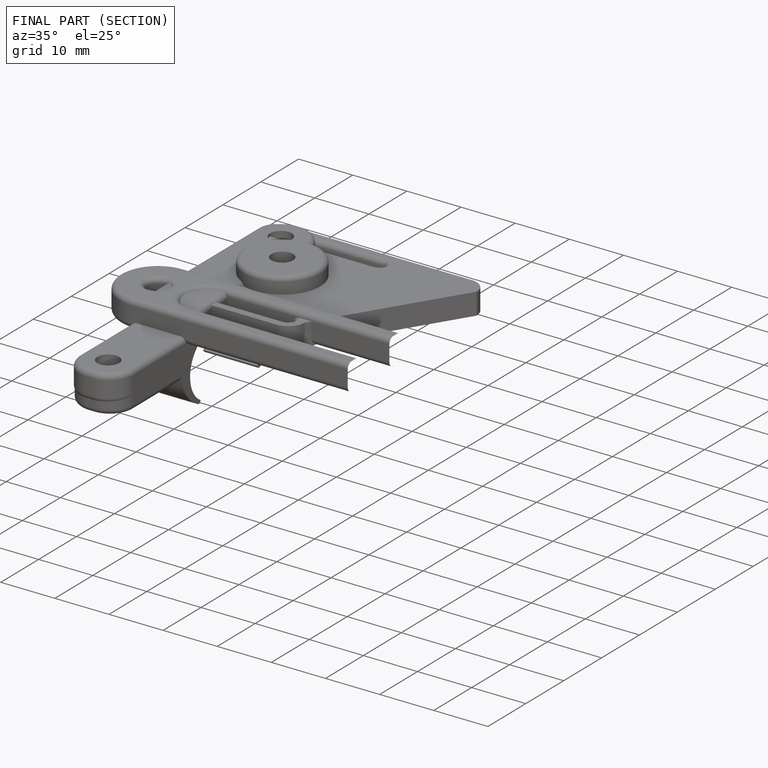
[diagram: finished part — half-section view (interior)]
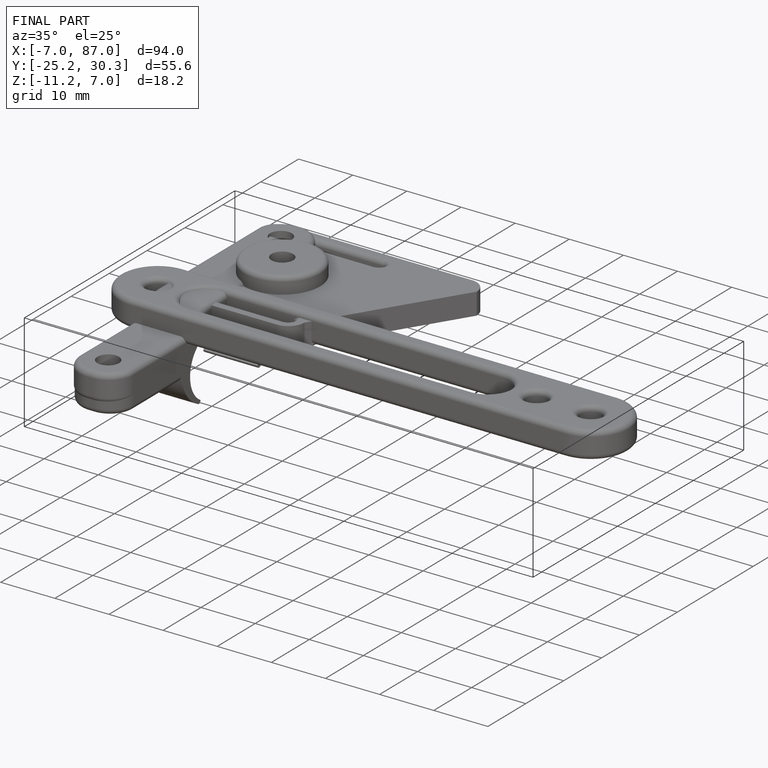
[diagram: finished part — iso view with bounding-box wireframe]
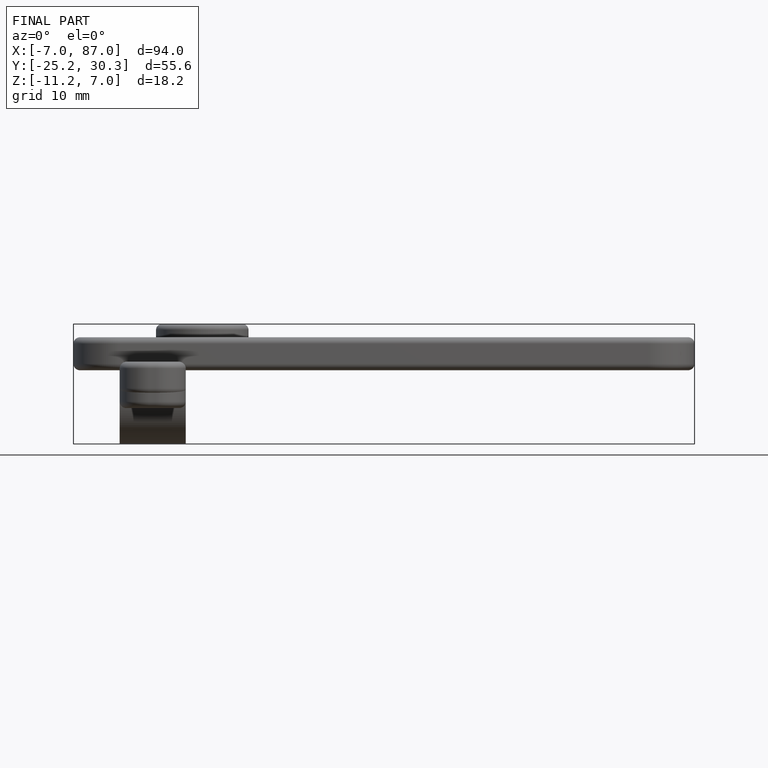
[diagram: finished part — front view with bounding-box wireframe]
